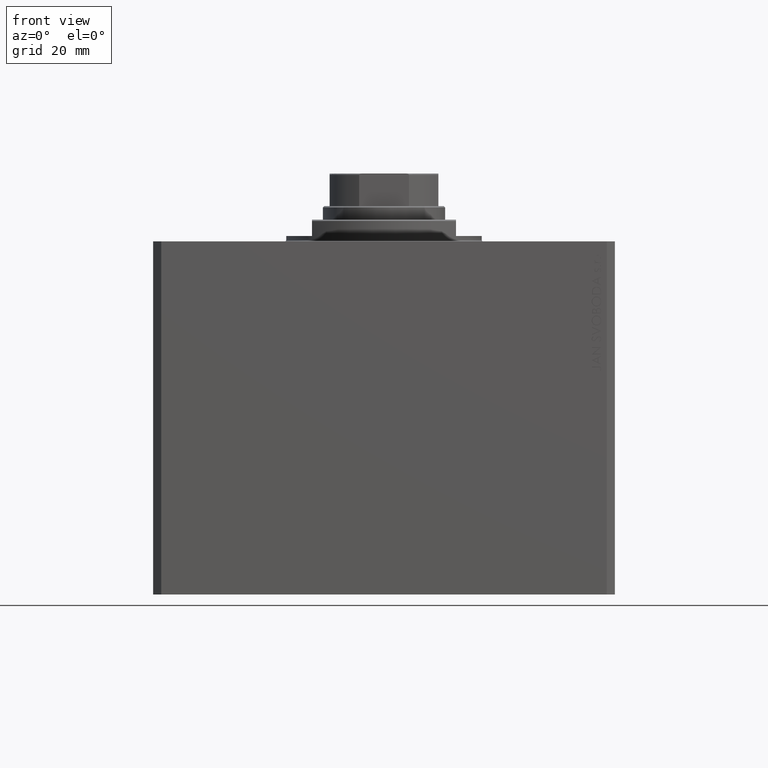
[diagram: clean part render]
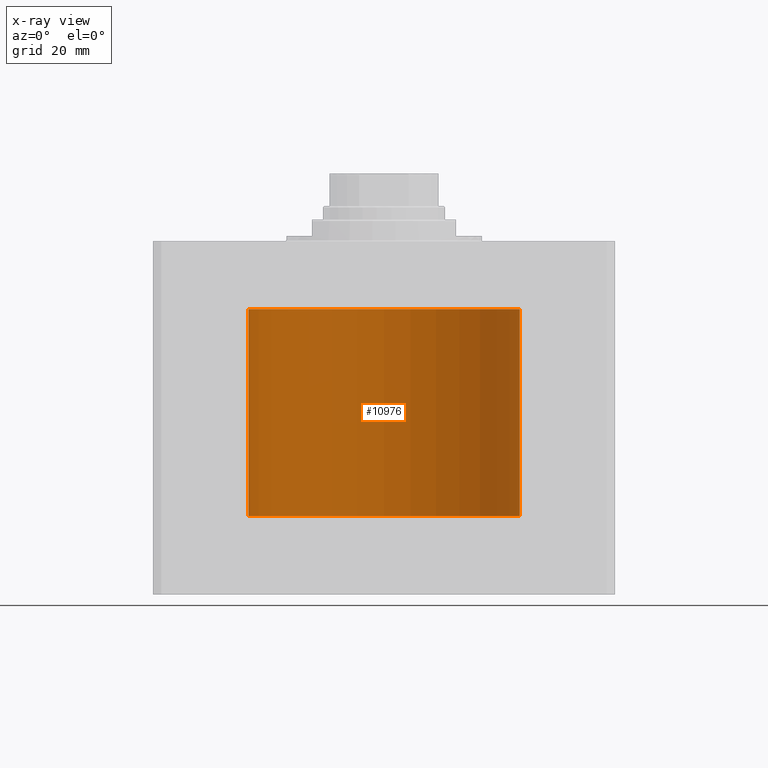
[diagram: x-ray — body ghosted, one internal face saturated and labeled with its STEP entity id]
A machine part, front view, then the same camera in x-ray: the body is ghosted and one INTERNAL B-rep face — a face not visible from any outside direction — is saturated and labeled: STEP entity #10976.
In plain terms, the highlighted cylindrical surface (partial cylindrical patch) has radius 50 mm, axis along (0, 0, 1).
Its self-contained STEP definition (entity closure, byte-faithful):
#395 = CARTESIAN_POINT ( 'NONE',  ( 50.00000000000000000, -6.476745247090812175E-24, -91.00000000000001421 ) ) ;
#597 = DIRECTION ( 'NONE',  ( -0.000000000000000000, -0.000000000000000000, 1.000000000000000000 ) ) ;
#786 = CARTESIAN_POINT ( 'NONE',  ( 50.00000000000000000, -6.476745247090812175E-24, -91.00000000000001421 ) ) ;
#1268 = ORIENTED_EDGE ( 'NONE', *, *, #15985, .F. ) ;
#1598 = VERTEX_POINT ( 'NONE', #395 ) ;
#1615 = ORIENTED_EDGE ( 'NONE', *, *, #16510, .T. ) ;
#1939 = EDGE_CURVE ( 'NONE', #4088, #30627, #6736, .T. ) ;
#3213 = CIRCLE ( 'NONE', #10425, 50.00000000000000000 ) ;
#3257 = ORIENTED_EDGE ( 'NONE', *, *, #35080, .T. ) ;
#3699 = CARTESIAN_POINT ( 'NONE',  ( 49.96952841668770162, 1.748193601366643479, -94.00584708661953925 ) ) ;
#3863 = VERTEX_POINT ( 'NONE', #42852 ) ;
#4070 = CARTESIAN_POINT ( 'NONE',  ( -49.99598898362840771, 0.6447919409892279852, -35.10225615370830354 ) ) ;
#4088 = VERTEX_POINT ( 'NONE', #34928 ) ;
#4167 = CARTESIAN_POINT ( 'NONE',  ( 50.00000000000000000, 0.1305077942112363443, -91.00000000000000000 ) ) ;
#4288 = CARTESIAN_POINT ( 'NONE',  ( -49.98524905102831184, 1.219303128102697809, -35.40928153240807319 ) ) ;
#4508 = CARTESIAN_POINT ( 'NONE',  ( -49.98259925701036366, 1.322227939264703833, -35.49376754264949341 ) ) ;
#4594 = CARTESIAN_POINT ( 'NONE',  ( 49.95998398718716516, 2.000000000000563549, -93.00000000000001421 ) ) ;
#4885 = CARTESIAN_POINT ( 'NONE',  ( -50.00000000000000000, 6.123233989258158337E-15, -38.99999999999999289 ) ) ;
#5467 = EDGE_CURVE ( 'NONE', #3863, #8656, #10811, .T. ) ;
#5621 = CARTESIAN_POINT ( 'NONE',  ( -49.98262832829516356, 1.321205413082630509, -38.50726475708437135 ) ) ;
#6473 = VERTEX_POINT ( 'NONE', #38268 ) ;
#6736 = B_SPLINE_CURVE_WITH_KNOTS ( 'NONE', 3,
 ( #35182, #20975, #41727, #17600, #4070, #21639, #17823, #4288, #4508, #18259, #25482, #9015, #42384, #39900, #8784, #42831, #29526, #8113, #43277, #22761, #15767, #5621, #18486, #22538, #22093, #36514, #29084, #19160, #25251, #18710 ),
 .UNSPECIFIED., .F., .F.,
 ( 4, 2, 2, 2, 2, 2, 2, 2, 2, 2, 2, 2, 2, 2, 4 ),
 ( 1.326213792119351937E-18, 0.0003908460679639691742, 0.0007816921359279370473, 0.001172538203891904975, 0.001563384271855872793, 0.002345076407783809082, 0.003126768543711746021, 0.003517614611675713623, 0.003908460679639682092, 0.004299306747603650128, 0.004690152815567617296, 0.005080998883531585332, 0.005471844951495553368, 0.005862691019459521403, 0.006253537087423489439 ),
 .UNSPECIFIED. ) ;
#7099 = CARTESIAN_POINT ( 'NONE',  ( 50.00000000000000000, 1.506791491575916802E-16, -95.00000000000001421 ) ) ;
#7700 = VERTEX_POINT ( 'NONE', #38368 ) ;
#7980 = EDGE_CURVE ( 'NONE', #1598, #3863, #20065, .T. ) ;
#8113 = CARTESIAN_POINT ( 'NONE',  ( -49.96768660357033554, 1.798001154690309411, -37.88564223843271606 ) ) ;
#8440 = CARTESIAN_POINT ( 'NONE',  ( 49.98263500888551647, 1.320952538904951679, -91.49251590435537196 ) ) ;
#8656 = VERTEX_POINT ( 'NONE', #12425 ) ;
#8784 = CARTESIAN_POINT ( 'NONE',  ( -49.96050770337905789, 1.987038794023258559, -37.26226128698008466 ) ) ;
#9015 = CARTESIAN_POINT ( 'NONE',  ( -49.96216141728076821, 1.947404903100933504, -36.47512611661414184 ) ) ;
#9237 = ORIENTED_EDGE ( 'NONE', *, *, #21488, .T. ) ;
#9412 = DIRECTION ( 'NONE',  ( 0.000000000000000000, 0.000000000000000000, 1.000000000000000000 ) ) ;
#9472 = DIRECTION ( 'NONE',  ( 0.000000000000000000, 0.000000000000000000, 1.000000000000000000 ) ) ;
#10425 = AXIS2_PLACEMENT_3D ( 'NONE', #40312, #9412, #23173 ) ;
#10811 = CIRCLE ( 'NONE', #16572, 50.00000000000000000 ) ;
#10976 = ADVANCED_FACE ( 'NONE', ( #12402 ), #28869, .F. ) ;
#11105 = B_SPLINE_CURVE_WITH_KNOTS ( 'NONE', 3,
 ( #28963, #31893, #39116, #14763, #42716, #25808, #12048, #25589, #39340, #8440, #22195, #17920, #32567, #22418, #42263, #39557, #4167, #786 ),
 .UNSPECIFIED., .F., .F.,
 ( 4, 2, 2, 2, 2, 2, 2, 2, 4 ),
 ( 0.003127478965430518024, 0.003518236230679781373, 0.003908993495929044722, 0.004299750761178308504, 0.004690508026427571420, 0.005081265291676835202, 0.005472022556926098985, 0.005862779822175361900, 0.006253537087424624816 ),
 .UNSPECIFIED. ) ;
#11575 = CARTESIAN_POINT ( 'NONE',  ( 49.99947616946592177, 0.2621653831979099958, -94.98702351732302418 ) ) ;
#11739 = CARTESIAN_POINT ( 'NONE',  ( 0.000000000000000000, 0.000000000000000000, -101.0999999999999943 ) ) ;
#11793 = CARTESIAN_POINT ( 'NONE',  ( 50.00000000000000000, 0.000000000000000000, -101.0999999999999943 ) ) ;
#11931 = LINE ( 'NONE', #33118, #31642 ) ;
#12048 = CARTESIAN_POINT ( 'NONE',  ( 49.96993720661966876, 1.735115303979041013, -91.99682860132226381 ) ) ;
#12402 = FACE_OUTER_BOUND ( 'NONE', #34782, .T. ) ;
#12425 = CARTESIAN_POINT ( 'NONE',  ( -50.00000000000000000, 6.123233995736764507E-15, -24.99999999999999289 ) ) ;
#13075 = CARTESIAN_POINT ( 'NONE',  ( 50.00000000000000000, 0.000000000000000000, -101.0999999999999943 ) ) ;
#13740 = VECTOR ( 'NONE', #43961, 1000.000000000000000 ) ;
#14043 = ORIENTED_EDGE ( 'NONE', *, *, #7980, .T. ) ;
#14084 = CARTESIAN_POINT ( 'NONE',  ( 49.96215500645249818, 1.947567242801464760, -93.52430054767012280 ) ) ;
#14529 = CARTESIAN_POINT ( 'NONE',  ( 50.00000000000000711, 0.1321888607815029926, -95.00000000000005684 ) ) ;
#14763 = CARTESIAN_POINT ( 'NONE',  ( 49.96251892914508375, 1.935809163618958495, -92.48063661859163176 ) ) ;
#15168 = DIRECTION ( 'NONE',  ( -0.000000000000000000, -0.000000000000000000, 1.000000000000000000 ) ) ;
#15767 = CARTESIAN_POINT ( 'NONE',  ( -49.97734518528593384, 1.507874855161124295, -38.32050907330479106 ) ) ;
#15979 = DIRECTION ( 'NONE',  ( -0.000000000000000000, -0.000000000000000000, 1.000000000000000000 ) ) ;
#15985 = EDGE_CURVE ( 'NONE', #7700, #44058, #3213, .T. ) ;
#16510 = EDGE_CURVE ( 'NONE', #29595, #6473, #38305, .T. ) ;
#16572 = AXIS2_PLACEMENT_3D ( 'NONE', #41028, #9472, #26618 ) ;
#17600 = CARTESIAN_POINT ( 'NONE',  ( -49.99748258676788026, 0.5177602892975216031, -35.06378986968200451 ) ) ;
#17823 = CARTESIAN_POINT ( 'NONE',  ( -49.99007938266582585, 1.001891274688316180, -35.26411427938287346 ) ) ;
#17920 = CARTESIAN_POINT ( 'NONE',  ( 49.99005286890575661, 1.003169031662883182, -91.26488598342368164 ) ) ;
#18140 = AXIS2_PLACEMENT_3D ( 'NONE', #11739, #21881, #36076 ) ;
#18168 = LINE ( 'NONE', #31486, #37622 ) ;
#18259 = CARTESIAN_POINT ( 'NONE',  ( -49.97476780406313424, 1.598950834465297177, -35.77059039179120958 ) ) ;
#18486 = CARTESIAN_POINT ( 'NONE',  ( -49.98523123236354593, 1.219998263164737029, -38.59015112589698759 ) ) ;
#18710 = CARTESIAN_POINT ( 'NONE',  ( -50.00000000000000000, 6.123233989258158337E-15, -38.99999999999999289 ) ) ;
#19160 = CARTESIAN_POINT ( 'NONE',  ( -49.99947195246410558, 0.2631107820817847887, -38.98691922436691470 ) ) ;
#19609 = VECTOR ( 'NONE', #15168, 1000.000000000000000 ) ;
#20065 = LINE ( 'NONE', #13075, #13740 ) ;
#20975 = CARTESIAN_POINT ( 'NONE',  ( -50.00000000000000711, 0.1321588334531834663, -34.99999999999998579 ) ) ;
#21284 = CARTESIAN_POINT ( 'NONE',  ( 49.99227494580978259, 0.8871990329080466919, -94.79724057694060946 ) ) ;
#21488 = EDGE_CURVE ( 'NONE', #6473, #1598, #11105, .T. ) ;
#21639 = CARTESIAN_POINT ( 'NONE',  ( -49.99227820941651146, 0.8870121366447424327, -35.20266925059756602 ) ) ;
#21881 = DIRECTION ( 'NONE',  ( -0.000000000000000000, -0.000000000000000000, 1.000000000000000000 ) ) ;
#22093 = CARTESIAN_POINT ( 'NONE',  ( -49.99228773711749341, 0.8864865707480861223, -38.79759541170199100 ) ) ;
#22195 = CARTESIAN_POINT ( 'NONE',  ( 49.98523696312182096, 1.219762141829697999, -91.40967013674320185 ) ) ;
#22418 = CARTESIAN_POINT ( 'NONE',  ( 49.99599990398859006, 0.6439560014968565005, -91.10196939152021400 ) ) ;
#22538 = CARTESIAN_POINT ( 'NONE',  ( -49.99004874905787688, 1.003375892571688910, -38.73499659467171341 ) ) ;
#22667 = ORIENTED_EDGE ( 'NONE', *, *, #30477, .F. ) ;
#22761 = CARTESIAN_POINT ( 'NONE',  ( -49.97474787754178749, 1.590541763713787082, -38.21949285922860184 ) ) ;
#23173 = DIRECTION ( 'NONE',  ( 1.000000000000000000, 0.000000000000000000, 0.000000000000000000 ) ) ;
#25251 = CARTESIAN_POINT ( 'NONE',  ( -50.00000000000001421, 0.1305374531515847147, -38.99999999999999289 ) ) ;
#25482 = CARTESIAN_POINT ( 'NONE',  ( -49.96953708402610062, 1.747948211813102892, -35.99374183287712725 ) ) ;
#25589 = CARTESIAN_POINT ( 'NONE',  ( 49.97475596784978791, 1.590287868744626465, -91.78017932967551928 ) ) ;
#25808 = CARTESIAN_POINT ( 'NONE',  ( 49.96769480970100119, 1.797773714148179325, -92.11390000902667907 ) ) ;
#26618 = DIRECTION ( 'NONE',  ( 1.000000000000000000, 0.000000000000000000, 0.000000000000000000 ) ) ;
#27678 = ORIENTED_EDGE ( 'NONE', *, *, #1939, .T. ) ;
#27846 = CARTESIAN_POINT ( 'NONE',  ( 49.95998398718717226, 2.000000000000561773, -93.26098757528311012 ) ) ;
#28282 = CARTESIAN_POINT ( 'NONE',  ( 49.99598718814007015, 0.6449352407546058430, -94.89769711772643745 ) ) ;
#28869 = CYLINDRICAL_SURFACE ( 'NONE', #18140, 50.00000000000000000 ) ;
#28926 = LINE ( 'NONE', #11793, #19609 ) ;
#28963 = CARTESIAN_POINT ( 'NONE',  ( 49.95998398718716516, 2.000000000000563549, -93.00000000000001421 ) ) ;
#29084 = CARTESIAN_POINT ( 'NONE',  ( -49.99746633848589283, 0.5194059499681273895, -38.93579253716512767 ) ) ;
#29526 = CARTESIAN_POINT ( 'NONE',  ( -49.96398106625520086, 1.898185627324846525, -37.64347622409935212 ) ) ;
#29595 = VERTEX_POINT ( 'NONE', #7099 ) ;
#30477 = EDGE_CURVE ( 'NONE', #4088, #8656, #11931, .T. ) ;
#30627 = VERTEX_POINT ( 'NONE', #4885 ) ;
#31486 = CARTESIAN_POINT ( 'NONE',  ( -50.00000000000000000, 6.123233995736764507E-15, -101.0999999999999943 ) ) ;
#31642 = VECTOR ( 'NONE', #15979, 1000.000000000000000 ) ;
#31875 = CARTESIAN_POINT ( 'NONE',  ( 49.99748146545036320, 0.5178754880116730464, -94.93618132556299827 ) ) ;
#31893 = CARTESIAN_POINT ( 'NONE',  ( 49.95998398718717226, 2.000000000000564437, -92.86956549692723684 ) ) ;
#32567 = CARTESIAN_POINT ( 'NONE',  ( 49.99229103891970283, 0.8862970221311301522, -91.20231340018571586 ) ) ;
#32619 = ORIENTED_EDGE ( 'NONE', *, *, #44203, .F. ) ;
#33118 = CARTESIAN_POINT ( 'NONE',  ( -50.00000000000000000, 6.123233995736764507E-15, -101.0999999999999943 ) ) ;
#34597 = CARTESIAN_POINT ( 'NONE',  ( 49.97475955401471026, 1.599209500590070165, -94.22908514075388098 ) ) ;
#34782 = EDGE_LOOP ( 'NONE', ( #32619, #1268, #3257, #1615, #9237, #14043, #39168, #22667, #27678 ) ) ;
#34822 = CARTESIAN_POINT ( 'NONE',  ( 49.98259270595343651, 1.322475809934057889, -94.50601728397791135 ) ) ;
#34928 = CARTESIAN_POINT ( 'NONE',  ( -50.00000000000000000, -7.484292582869336695E-15, -34.99999999999999289 ) ) ;
#35045 = CARTESIAN_POINT ( 'NONE',  ( 49.98524326844813004, 1.219541607305973274, -94.59053820226215237 ) ) ;
#35080 = EDGE_CURVE ( 'NONE', #7700, #29595, #28926, .T. ) ;
#35182 = CARTESIAN_POINT ( 'NONE',  ( -50.00000000000000000, -7.484292582869336695E-15, -34.99999999999999289 ) ) ;
#36076 = DIRECTION ( 'NONE',  ( 1.000000000000000000, 0.000000000000000000, 0.000000000000000000 ) ) ;
#36514 = CARTESIAN_POINT ( 'NONE',  ( -49.99599814809604226, 0.6440968921210817877, -38.89798495722402549 ) ) ;
#37622 = VECTOR ( 'NONE', #597, 1000.000000000000000 ) ;
#38026 = CARTESIAN_POINT ( 'NONE',  ( -50.00000000000000000, 6.123233995736764507E-15, -101.0999999999999943 ) ) ;
#38268 = CARTESIAN_POINT ( 'NONE',  ( 49.95998398718716516, 2.000000000000563549, -93.00000000000001421 ) ) ;
#38305 = B_SPLINE_CURVE_WITH_KNOTS ( 'NONE', 3,
 ( #42467, #14529, #11575, #31875, #28282, #21284, #39096, #35045, #34822, #34597, #3699, #14084, #27846, #4594 ),
 .UNSPECIFIED., .F., .F.,
 ( 4, 2, 2, 2, 2, 2, 4 ),
 ( 1.464298950247375998E-19, 0.0003909348706788147530, 0.0007818697413576292891, 0.001172804612036444042, 0.001563739482715258578, 0.002345609224072888084, 0.003127478965430518024 ),
 .UNSPECIFIED. ) ;
#38368 = CARTESIAN_POINT ( 'NONE',  ( 50.00000000000000000, 0.000000000000000000, -101.0999999999999943 ) ) ;
#39096 = CARTESIAN_POINT ( 'NONE',  ( 49.99007528730422933, 1.002097354324908984, -94.73576910828040809 ) ) ;
#39116 = CARTESIAN_POINT ( 'NONE',  ( 49.96051123778289593, 1.986950357331387584, -92.73708610268798225 ) ) ;
#39168 = ORIENTED_EDGE ( 'NONE', *, *, #5467, .T. ) ;
#39340 = CARTESIAN_POINT ( 'NONE',  ( 49.97735290927441554, 1.507618726120014241, -91.67920111852205878 ) ) ;
#39557 = CARTESIAN_POINT ( 'NONE',  ( 49.99947219664576181, 0.2630509640965523199, -91.01307477770997423 ) ) ;
#39900 = CARTESIAN_POINT ( 'NONE',  ( -49.95998213453558634, 2.000046279225707213, -37.12975027192857880 ) ) ;
#40312 = CARTESIAN_POINT ( 'NONE',  ( 0.000000000000000000, 0.000000000000000000, -101.0999999999999943 ) ) ;
#41028 = CARTESIAN_POINT ( 'NONE',  ( 0.000000000000000000, 0.000000000000000000, -24.99999999999999289 ) ) ;
#41727 = CARTESIAN_POINT ( 'NONE',  ( -49.99947640732126075, 0.2621063239499299979, -35.01297064418641014 ) ) ;
#42263 = CARTESIAN_POINT ( 'NONE',  ( 49.99746746122490748, 0.5192910711913447663, -91.06417861566059457 ) ) ;
#42384 = CARTESIAN_POINT ( 'NONE',  ( -49.95998770768563446, 1.999907061972440614, -36.73836523183381786 ) ) ;
#42467 = CARTESIAN_POINT ( 'NONE',  ( 50.00000000000000000, 1.506791491575916802E-16, -95.00000000000001421 ) ) ;
#42716 = CARTESIAN_POINT ( 'NONE',  ( 49.96398801900033959, 1.898003203340656198, -92.35599117910246036 ) ) ;
#42831 = CARTESIAN_POINT ( 'NONE',  ( -49.96251288907240706, 1.935964606501246799, -37.51879205273049678 ) ) ;
#42852 = CARTESIAN_POINT ( 'NONE',  ( 50.00000000000000000, 0.000000000000000000, -24.99999999999999289 ) ) ;
#43277 = CARTESIAN_POINT ( 'NONE',  ( -49.96992887184637055, 1.735355026673580214, -38.00276062309308855 ) ) ;
#43961 = DIRECTION ( 'NONE',  ( -0.000000000000000000, -0.000000000000000000, 1.000000000000000000 ) ) ;
#44058 = VERTEX_POINT ( 'NONE', #38026 ) ;
#44203 = EDGE_CURVE ( 'NONE', #44058, #30627, #18168, .T. ) ;